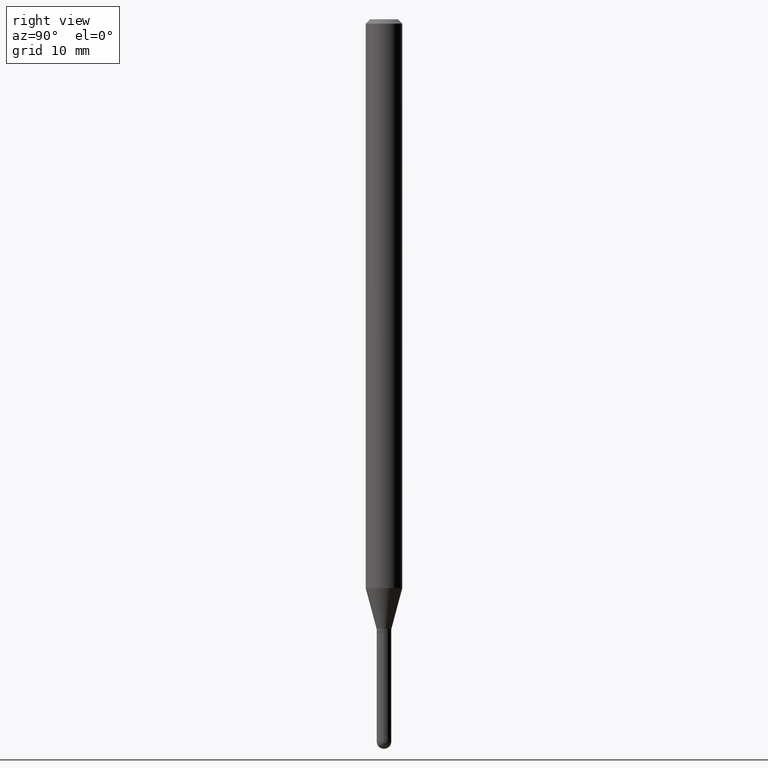
[diagram: clean part render]
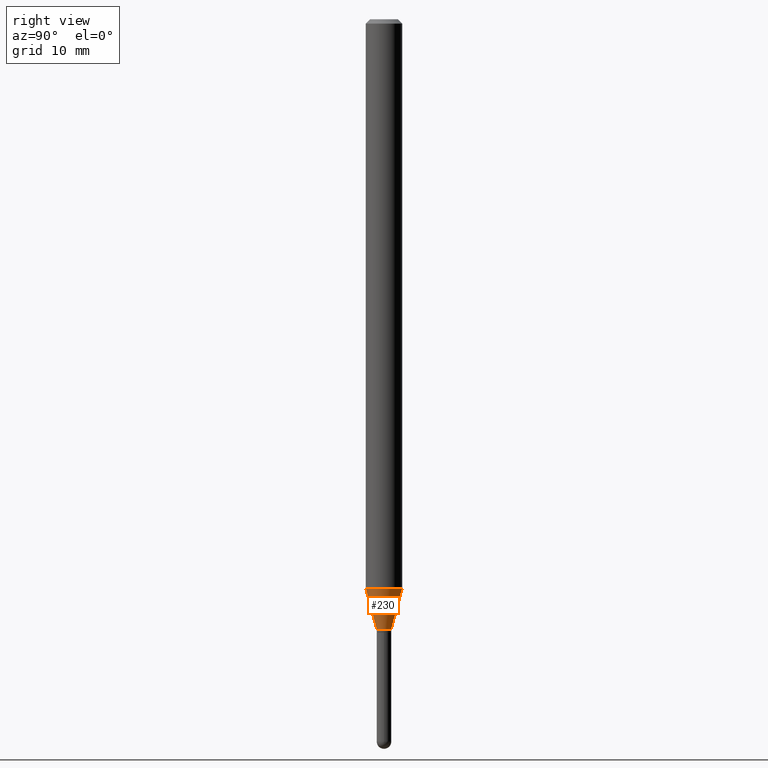
[diagram: same view with one face highlighted and labeled with its STEP entity id]
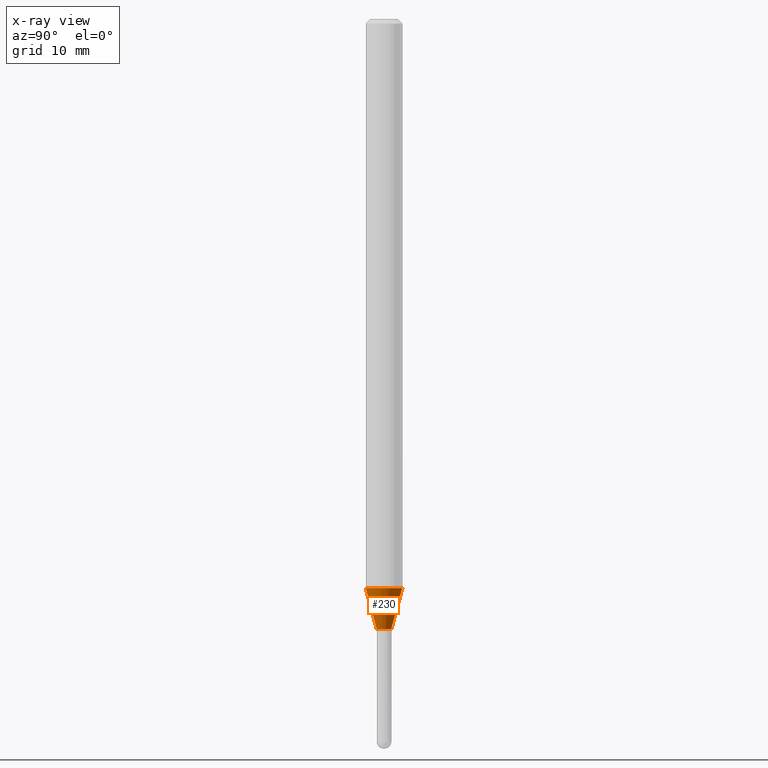
[diagram: x-ray of the same camera — body ghosted, the highlighted face saturated]
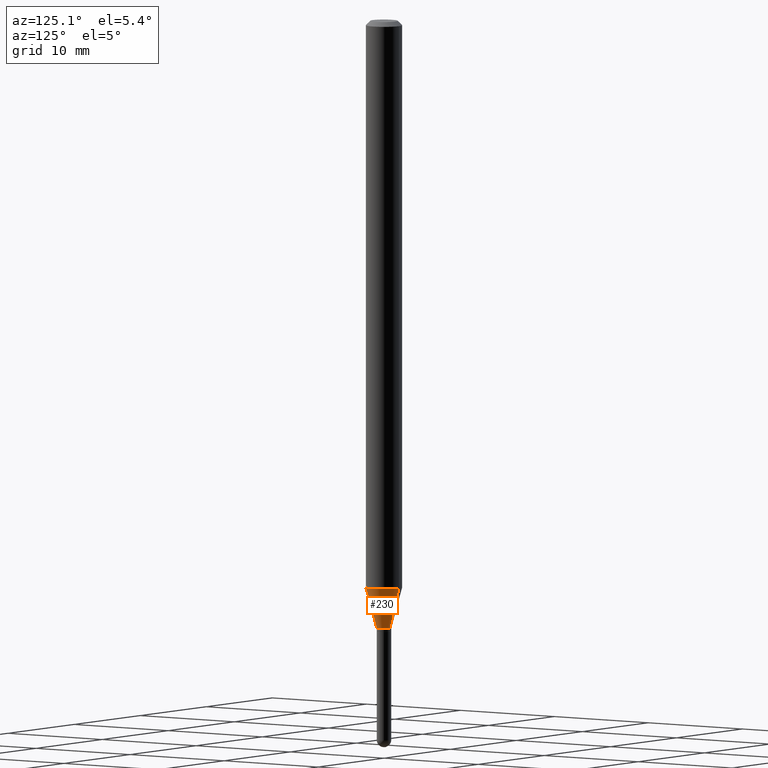
[diagram: same view with one face highlighted and labeled with its STEP entity id]
A machine part, right view. The second image highlights one B-rep face of the part: STEP entity #230.
The next image is the same camera in x-ray: the body ghosted, the highlighted face saturated — about 0% of this face is hidden behind the body in this view.
A second angle (auxiliary view) of the same face is appended — the face is thin or edge-on in the first view.
In plain terms, the highlighted conical surface has half-angle 15 deg.
Its self-contained STEP definition (entity closure, byte-faithful):
#3 = CARTESIAN_POINT ( 'NONE',  ( 4.440892098501099478E-16, 0.06249999999999315131, -1.950048094716166691 ) ) ;
#15 = CARTESIAN_POINT ( 'NONE',  ( 5.110994923088818021E-29, -7.297245950959710763E-15, -2.090000000000000302 ) ) ;
#20 = LINE ( 'NONE', #333, #235 ) ;
#25 = VERTEX_POINT ( 'NONE', #430 ) ;
#46 = LINE ( 'NONE', #485, #408 ) ;
#51 = CARTESIAN_POINT ( 'NONE',  ( 5.110994923088818021E-29, -7.297245950959710763E-15, -2.090000000000000302 ) ) ;
#63 = DIRECTION ( 'NONE',  ( -1.807323732225330534E-15, -0.2588190451025182415, 0.9659258262890689783 ) ) ;
#74 = EDGE_CURVE ( 'NONE', #359, #365, #446, .T. ) ;
#78 = CIRCLE ( 'NONE', #212, 0.02499999999999965791 ) ;
#85 = EDGE_CURVE ( 'NONE', #219, #359, #46, .T. ) ;
#87 = CARTESIAN_POINT ( 'NONE',  ( -1.745740669421031485E-16, -0.02500000000000695416, -2.090000000000000302 ) ) ;
#101 = DIRECTION ( 'NONE',  ( 1.839019923739600710E-15, 0.2588190451025250138, 0.9659258262890670910 ) ) ;
#131 = DIRECTION ( 'NONE',  ( -6.982962677686265922E-15, -1.000000000000000000, 0.000000000000000000 ) ) ;
#154 = ORIENTED_EDGE ( 'NONE', *, *, #270, .T. ) ;
#157 = ORIENTED_EDGE ( 'NONE', *, *, #74, .F. ) ;
#178 = AXIS2_PLACEMENT_3D ( 'NONE', #476, #200, #491 ) ;
#200 = DIRECTION ( 'NONE',  ( -2.445452116310438787E-29, 3.491505239693641409E-15, 1.000000000000000000 ) ) ;
#207 = EDGE_LOOP ( 'NONE', ( #154, #415, #157, #255 ) ) ;
#212 = AXIS2_PLACEMENT_3D ( 'NONE', #15, #228, #368 ) ;
#219 = VERTEX_POINT ( 'NONE', #87 ) ;
#228 = DIRECTION ( 'NONE',  ( -2.445452116310438787E-29, 3.491505239693641409E-15, 1.000000000000000000 ) ) ;
#230 = ADVANCED_FACE ( 'NONE', ( #404 ), #344, .T. ) ;
#235 = VECTOR ( 'NONE', #101, 39.37007874015748143 ) ;
#255 = ORIENTED_EDGE ( 'NONE', *, *, #85, .F. ) ;
#270 = EDGE_CURVE ( 'NONE', #219, #25, #78, .T. ) ;
#273 = EDGE_CURVE ( 'NONE', #25, #365, #20, .T. ) ;
#322 = DIRECTION ( 'NONE',  ( -2.445452116310438787E-29, 3.491505239693641409E-15, 1.000000000000000000 ) ) ;
#333 = CARTESIAN_POINT ( 'NONE',  ( 1.776356839400736699E-16, 0.02499999999999235820, -2.090000000000000302 ) ) ;
#344 = CONICAL_SURFACE ( 'NONE', #493, 0.02499999999999965791, 0.2617993877991502960 ) ;
#359 = VERTEX_POINT ( 'NONE', #388 ) ;
#365 = VERTEX_POINT ( 'NONE', #3 ) ;
#368 = DIRECTION ( 'NONE',  ( -6.982962677686265922E-15, -1.000000000000000000, 0.000000000000000000 ) ) ;
#388 = CARTESIAN_POINT ( 'NONE',  ( -4.364351673553440419E-16, -0.06250000000000682787, -1.950048094716166247 ) ) ;
#404 = FACE_OUTER_BOUND ( 'NONE', #207, .T. ) ;
#408 = VECTOR ( 'NONE', #63, 39.37007874015748143 ) ;
#415 = ORIENTED_EDGE ( 'NONE', *, *, #273, .T. ) ;
#430 = CARTESIAN_POINT ( 'NONE',  ( 3.108624468950920307E-16, 0.02499999999999236167, -2.090000000000000302 ) ) ;
#446 = CIRCLE ( 'NONE', #178, 0.06250000000000000000 ) ;
#476 = CARTESIAN_POINT ( 'NONE',  ( 4.768749240130788983E-29, -6.808603140356097792E-15, -1.950048094716166469 ) ) ;
#485 = CARTESIAN_POINT ( 'NONE',  ( -1.745740669421031485E-16, -0.02500000000000695416, -2.090000000000000302 ) ) ;
#491 = DIRECTION ( 'NONE',  ( -6.982962677686265922E-15, -1.000000000000000000, 4.370956789862821150E-15 ) ) ;
#493 = AXIS2_PLACEMENT_3D ( 'NONE', #51, #322, #131 ) ;